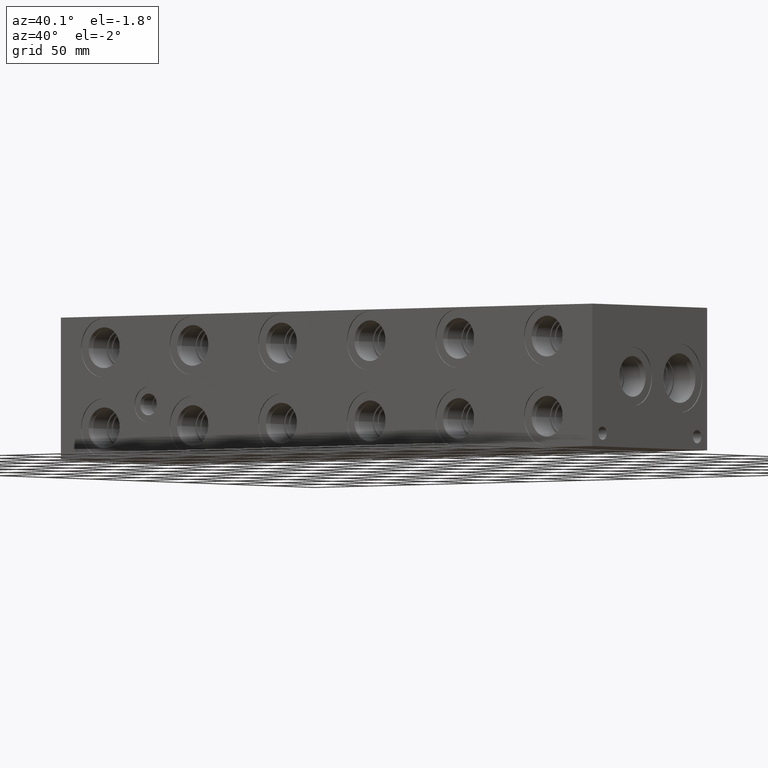
[diagram: clean part render]
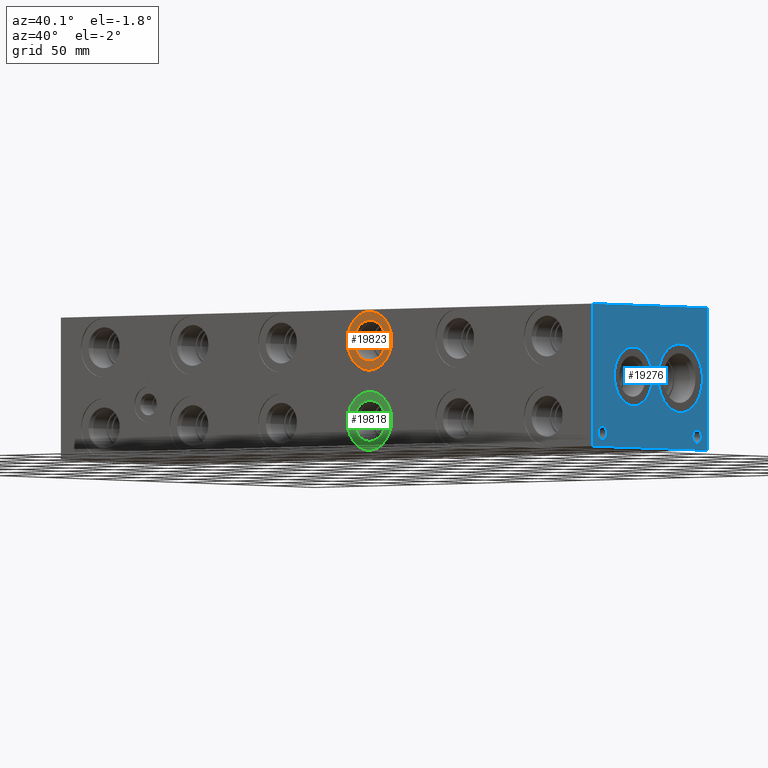
[diagram: same view with three faces highlighted in distinct colors, each labeled with its STEP entity id]
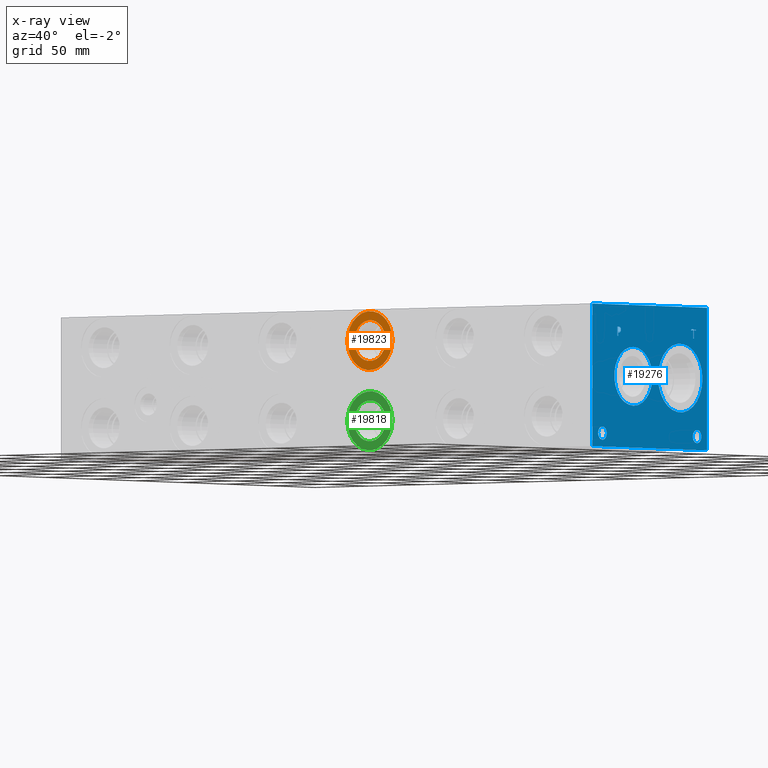
[diagram: x-ray of the same camera — body ghosted, the three highlighted faces saturated]
A machine part, auxiliary view with three faces highlighted in distinct colors.
The next image is the same camera in x-ray (body ghosted, the three faces saturated) — at least one of them is partly hidden behind the body in this view.
Their STEP definitions:

[orange] entity #19823 — the highlighted planar face has unit normal (0, 1, 0).
#671=CIRCLE('',#20759,21.0185);
#672=CIRCLE('',#20760,21.0185);
#673=CIRCLE('',#20762,14.5923);
#674=CIRCLE('',#20763,14.5923);
#1790=FACE_BOUND('',#3771,.T.);
#2620=FACE_OUTER_BOUND('',#3770,.T.);
#3770=EDGE_LOOP('',(#16264,#16265));
#3771=EDGE_LOOP('',(#16266,#16267));
#8906=VERTEX_POINT('',#33477);
#8907=VERTEX_POINT('',#33479);
#8908=VERTEX_POINT('',#33483);
#8909=VERTEX_POINT('',#33484);
#11514=EDGE_CURVE('',#8906,#8907,#671,.T.);
#11515=EDGE_CURVE('',#8907,#8906,#672,.T.);
#11516=EDGE_CURVE('',#8908,#8909,#673,.T.);
#11517=EDGE_CURVE('',#8909,#8908,#674,.T.);
#16264=ORIENTED_EDGE('',*,*,#11515,.F.);
#16265=ORIENTED_EDGE('',*,*,#11514,.F.);
#16266=ORIENTED_EDGE('',*,*,#11516,.T.);
#16267=ORIENTED_EDGE('',*,*,#11517,.T.);
#18379=PLANE('',#20761);
#19823=ADVANCED_FACE('',(#2620,#1790),#18379,.F.);
#20759=AXIS2_PLACEMENT_3D('',#33480,#24211,#24212);
#20760=AXIS2_PLACEMENT_3D('',#33481,#24213,#24214);
#20761=AXIS2_PLACEMENT_3D('',#33482,#24215,#24216);
#20762=AXIS2_PLACEMENT_3D('',#33485,#24217,#24218);
#20763=AXIS2_PLACEMENT_3D('',#33486,#24219,#24220);
#24211=DIRECTION('center_axis',(0.,1.,0.));
#24212=DIRECTION('ref_axis',(1.,0.,0.));
#24213=DIRECTION('center_axis',(0.,1.,0.));
#24214=DIRECTION('ref_axis',(1.,0.,0.));
#24215=DIRECTION('center_axis',(0.,1.,0.));
#24216=DIRECTION('ref_axis',(0.,0.,1.));
#24217=DIRECTION('center_axis',(0.,1.,0.));
#24218=DIRECTION('ref_axis',(1.,0.,0.));
#24219=DIRECTION('center_axis',(0.,1.,0.));
#24220=DIRECTION('ref_axis',(1.,0.,0.));
#33477=CARTESIAN_POINT('',(266.3063,0.7874,79.375));
#33479=CARTESIAN_POINT('',(308.3433,0.7874,79.375));
#33480=CARTESIAN_POINT('Origin',(287.3248,0.7874,79.375));
#33481=CARTESIAN_POINT('Origin',(287.3248,0.7874,79.375));
#33482=CARTESIAN_POINT('Origin',(301.9171,0.7874,79.375));
#33483=CARTESIAN_POINT('',(301.9171,0.7874,79.375));
#33484=CARTESIAN_POINT('',(272.7325,0.787399999999995,79.375));
#33485=CARTESIAN_POINT('Origin',(287.3248,0.7874,79.375));
#33486=CARTESIAN_POINT('Origin',(287.3248,0.7874,79.375));

[blue] entity #19276 — the highlighted planar face has unit normal (1, 0, 0).
#584=CIRCLE('',#20307,24.5618);
#585=CIRCLE('',#20308,24.5618);
#586=CIRCLE('',#20309,21.0185);
#587=CIRCLE('',#20310,21.0185);
#588=CIRCLE('',#20311,4.7625);
#589=CIRCLE('',#20312,4.7625);
#590=CIRCLE('',#20313,4.7625);
#591=CIRCLE('',#20314,4.7625);
#1446=B_SPLINE_CURVE_WITH_KNOTS('',2,(#29009,#29010,#29011,#29012),
 .UNSPECIFIED.,.F.,.F.,(3,1,3),(0.,1.,2.),.UNSPECIFIED.);
#1448=B_SPLINE_CURVE_WITH_KNOTS('',2,(#29030,#29031,#29032,#29033),
 .UNSPECIFIED.,.F.,.F.,(3,1,3),(0.,1.,2.),.UNSPECIFIED.);
#1450=B_SPLINE_CURVE_WITH_KNOTS('',2,(#29079,#29080,#29081,#29082),
 .UNSPECIFIED.,.F.,.F.,(3,1,3),(0.,1.,2.),.UNSPECIFIED.);
#1452=B_SPLINE_CURVE_WITH_KNOTS('',2,(#29097,#29098,#29099,#29100),
 .UNSPECIFIED.,.F.,.F.,(3,1,3),(0.,1.,2.),.UNSPECIFIED.);
#1755=FACE_BOUND('',#3189,.T.);
#1756=FACE_BOUND('',#3190,.T.);
#1757=FACE_BOUND('',#3191,.T.);
#1758=FACE_BOUND('',#3192,.T.);
#1759=FACE_BOUND('',#3193,.T.);
#1760=FACE_BOUND('',#3194,.T.);
#2073=FACE_OUTER_BOUND('',#3188,.T.);
#3188=EDGE_LOOP('',(#13601,#13602,#13603,#13604));
#3189=EDGE_LOOP('',(#13605,#13606));
#3190=EDGE_LOOP('',(#13607,#13608));
#3191=EDGE_LOOP('',(#13609,#13610));
#3192=EDGE_LOOP('',(#13611,#13612));
#3193=EDGE_LOOP('',(#13613,#13614,#13615,#13616,#13617,#13618,#13619,#13620));
#3194=EDGE_LOOP('',(#13621,#13622,#13623,#13624,#13625,#13626,#13627,#13628,
#13629));
#4240=LINE('',#26279,#5912);
#4754=LINE('',#29042,#6426);
#4757=LINE('',#29048,#6429);
#4760=LINE('',#29054,#6432);
#4763=LINE('',#29060,#6435);
#4766=LINE('',#29066,#6438);
#4770=LINE('',#29108,#6442);
#4771=LINE('',#29110,#6443);
#4772=LINE('',#29111,#6444);
#4773=LINE('',#29130,#6445);
#4774=LINE('',#29132,#6446);
#4775=LINE('',#29134,#6447);
#4776=LINE('',#29136,#6448);
#4777=LINE('',#29138,#6449);
#4778=LINE('',#29140,#6450);
#4779=LINE('',#29142,#6451);
#4780=LINE('',#29143,#6452);
#5912=VECTOR('',#21684,10.);
#6426=VECTOR('',#22440,10.);
#6429=VECTOR('',#22445,10.);
#6432=VECTOR('',#22450,10.);
#6435=VECTOR('',#22455,10.);
#6438=VECTOR('',#22460,10.);
#6442=VECTOR('',#22468,10.);
#6443=VECTOR('',#22469,10.);
#6444=VECTOR('',#22470,10.);
#6445=VECTOR('',#22487,10.);
#6446=VECTOR('',#22488,10.);
#6447=VECTOR('',#22489,10.);
#6448=VECTOR('',#22490,10.);
#6449=VECTOR('',#22491,10.);
#6450=VECTOR('',#22492,10.);
#6451=VECTOR('',#22493,10.);
#6452=VECTOR('',#22494,10.);
#7573=VERTEX_POINT('',#26276);
#7574=VERTEX_POINT('',#26278);
#8216=VERTEX_POINT('',#29007);
#8217=VERTEX_POINT('',#29008);
#8220=VERTEX_POINT('',#29029);
#8222=VERTEX_POINT('',#29041);
#8224=VERTEX_POINT('',#29047);
#8226=VERTEX_POINT('',#29053);
#8228=VERTEX_POINT('',#29059);
#8230=VERTEX_POINT('',#29065);
#8232=VERTEX_POINT('',#29078);
#8234=VERTEX_POINT('',#29107);
#8235=VERTEX_POINT('',#29109);
#8236=VERTEX_POINT('',#29112);
#8237=VERTEX_POINT('',#29113);
#8238=VERTEX_POINT('',#29116);
#8239=VERTEX_POINT('',#29117);
#8240=VERTEX_POINT('',#29120);
#8241=VERTEX_POINT('',#29121);
#8242=VERTEX_POINT('',#29124);
#8243=VERTEX_POINT('',#29125);
#8244=VERTEX_POINT('',#29128);
#8245=VERTEX_POINT('',#29129);
#8246=VERTEX_POINT('',#29131);
#8247=VERTEX_POINT('',#29133);
#8248=VERTEX_POINT('',#29135);
#8249=VERTEX_POINT('',#29137);
#8250=VERTEX_POINT('',#29139);
#8251=VERTEX_POINT('',#29141);
#9542=EDGE_CURVE('',#7573,#7574,#4240,.T.);
#10321=EDGE_CURVE('',#8216,#8217,#1446,.T.);
#10325=EDGE_CURVE('',#8220,#8216,#1448,.T.);
#10328=EDGE_CURVE('',#8222,#8220,#4754,.T.);
#10331=EDGE_CURVE('',#8224,#8222,#4757,.T.);
#10334=EDGE_CURVE('',#8226,#8224,#4760,.T.);
#10337=EDGE_CURVE('',#8228,#8226,#4763,.T.);
#10340=EDGE_CURVE('',#8230,#8228,#4766,.T.);
#10343=EDGE_CURVE('',#8232,#8230,#1450,.T.);
#10346=EDGE_CURVE('',#8217,#8232,#1452,.T.);
#10348=EDGE_CURVE('',#7573,#8234,#4770,.T.);
#10349=EDGE_CURVE('',#8234,#8235,#4771,.T.);
#10350=EDGE_CURVE('',#7574,#8235,#4772,.T.);
#10351=EDGE_CURVE('',#8236,#8237,#584,.T.);
#10352=EDGE_CURVE('',#8237,#8236,#585,.T.);
#10353=EDGE_CURVE('',#8238,#8239,#586,.T.);
#10354=EDGE_CURVE('',#8239,#8238,#587,.T.);
#10355=EDGE_CURVE('',#8240,#8241,#588,.T.);
#10356=EDGE_CURVE('',#8241,#8240,#589,.T.);
#10357=EDGE_CURVE('',#8242,#8243,#590,.T.);
#10358=EDGE_CURVE('',#8243,#8242,#591,.T.);
#10359=EDGE_CURVE('',#8244,#8245,#4773,.T.);
#10360=EDGE_CURVE('',#8245,#8246,#4774,.T.);
#10361=EDGE_CURVE('',#8246,#8247,#4775,.T.);
#10362=EDGE_CURVE('',#8247,#8248,#4776,.T.);
#10363=EDGE_CURVE('',#8248,#8249,#4777,.T.);
#10364=EDGE_CURVE('',#8249,#8250,#4778,.T.);
#10365=EDGE_CURVE('',#8250,#8251,#4779,.T.);
#10366=EDGE_CURVE('',#8251,#8244,#4780,.T.);
#13601=ORIENTED_EDGE('',*,*,#10348,.T.);
#13602=ORIENTED_EDGE('',*,*,#10349,.T.);
#13603=ORIENTED_EDGE('',*,*,#10350,.F.);
#13604=ORIENTED_EDGE('',*,*,#9542,.F.);
#13605=ORIENTED_EDGE('',*,*,#10351,.T.);
#13606=ORIENTED_EDGE('',*,*,#10352,.T.);
#13607=ORIENTED_EDGE('',*,*,#10353,.T.);
#13608=ORIENTED_EDGE('',*,*,#10354,.T.);
#13609=ORIENTED_EDGE('',*,*,#10355,.T.);
#13610=ORIENTED_EDGE('',*,*,#10356,.T.);
#13611=ORIENTED_EDGE('',*,*,#10357,.T.);
#13612=ORIENTED_EDGE('',*,*,#10358,.T.);
#13613=ORIENTED_EDGE('',*,*,#10359,.T.);
#13614=ORIENTED_EDGE('',*,*,#10360,.T.);
#13615=ORIENTED_EDGE('',*,*,#10361,.T.);
#13616=ORIENTED_EDGE('',*,*,#10362,.T.);
#13617=ORIENTED_EDGE('',*,*,#10363,.T.);
#13618=ORIENTED_EDGE('',*,*,#10364,.T.);
#13619=ORIENTED_EDGE('',*,*,#10365,.T.);
#13620=ORIENTED_EDGE('',*,*,#10366,.T.);
#13621=ORIENTED_EDGE('',*,*,#10321,.T.);
#13622=ORIENTED_EDGE('',*,*,#10346,.T.);
#13623=ORIENTED_EDGE('',*,*,#10343,.T.);
#13624=ORIENTED_EDGE('',*,*,#10340,.T.);
#13625=ORIENTED_EDGE('',*,*,#10337,.T.);
#13626=ORIENTED_EDGE('',*,*,#10334,.T.);
#13627=ORIENTED_EDGE('',*,*,#10331,.T.);
#13628=ORIENTED_EDGE('',*,*,#10328,.T.);
#13629=ORIENTED_EDGE('',*,*,#10325,.T.);
#18045=PLANE('',#20306);
#19276=ADVANCED_FACE('',(#2073,#1755,#1756,#1757,#1758,#1759,#1760),#18045,
 .T.);
#20306=AXIS2_PLACEMENT_3D('',#29106,#22466,#22467);
#20307=AXIS2_PLACEMENT_3D('',#29114,#22471,#22472);
#20308=AXIS2_PLACEMENT_3D('',#29115,#22473,#22474);
#20309=AXIS2_PLACEMENT_3D('',#29118,#22475,#22476);
#20310=AXIS2_PLACEMENT_3D('',#29119,#22477,#22478);
#20311=AXIS2_PLACEMENT_3D('',#29122,#22479,#22480);
#20312=AXIS2_PLACEMENT_3D('',#29123,#22481,#22482);
#20313=AXIS2_PLACEMENT_3D('',#29126,#22483,#22484);
#20314=AXIS2_PLACEMENT_3D('',#29127,#22485,#22486);
#21684=DIRECTION('',(0.,0.,1.));
#22440=DIRECTION('',(0.,1.,0.));
#22445=DIRECTION('',(0.,0.,1.));
#22450=DIRECTION('',(0.,-1.,0.));
#22455=DIRECTION('',(0.,0.,-1.));
#22460=DIRECTION('',(0.,-1.,0.));
#22466=DIRECTION('center_axis',(1.,0.,0.));
#22467=DIRECTION('ref_axis',(0.,1.,0.));
#22468=DIRECTION('',(0.,1.,0.));
#22469=DIRECTION('',(0.,0.,1.));
#22470=DIRECTION('',(0.,1.,0.));
#22471=DIRECTION('center_axis',(-1.,0.,0.));
#22472=DIRECTION('ref_axis',(0.,1.,0.));
#22473=DIRECTION('center_axis',(-1.,0.,0.));
#22474=DIRECTION('ref_axis',(0.,1.,0.));
#22475=DIRECTION('center_axis',(-1.,0.,0.));
#22476=DIRECTION('ref_axis',(0.,0.,-1.));
#22477=DIRECTION('center_axis',(-1.,0.,0.));
#22478=DIRECTION('ref_axis',(0.,0.,-1.));
#22479=DIRECTION('center_axis',(-1.,0.,0.));
#22480=DIRECTION('ref_axis',(0.,1.,0.));
#22481=DIRECTION('center_axis',(-1.,0.,0.));
#22482=DIRECTION('ref_axis',(0.,1.,0.));
#22483=DIRECTION('center_axis',(-1.,0.,0.));
#22484=DIRECTION('ref_axis',(0.,1.,0.));
#22485=DIRECTION('center_axis',(-1.,0.,0.));
#22486=DIRECTION('ref_axis',(0.,1.,0.));
#22487=DIRECTION('',(0.,-1.,0.));
#22488=DIRECTION('',(0.,0.,1.));
#22489=DIRECTION('',(0.,-1.,0.));
#22490=DIRECTION('',(0.,0.,1.));
#22491=DIRECTION('',(0.,1.,0.));
#22492=DIRECTION('',(0.,0.,-1.));
#22493=DIRECTION('',(0.,-1.,0.));
#22494=DIRECTION('',(0.,0.,-1.));
#26276=CARTESIAN_POINT('',(495.3,0.,0.));
#26278=CARTESIAN_POINT('',(495.3,0.,101.6));
#26279=CARTESIAN_POINT('',(495.3,0.,0.));
#29007=CARTESIAN_POINT('',(495.3,30.8880672023594,85.3287681439707));
#29008=CARTESIAN_POINT('',(495.3,31.644509654532,83.810737372604));
#29009=CARTESIAN_POINT('Ctrl Pts',(495.3,30.8880672023594,85.3287681439707));
#29010=CARTESIAN_POINT('Ctrl Pts',(495.3,31.2431320268486,85.0869123939564));
#29011=CARTESIAN_POINT('Ctrl Pts',(495.3,31.644509654532,84.3407616758269));
#29012=CARTESIAN_POINT('Ctrl Pts',(495.3,31.644509654532,83.810737372604));
#29029=CARTESIAN_POINT('',(495.3,29.2259521543883,85.7249999046326));
#29030=CARTESIAN_POINT('Ctrl Pts',(495.3,29.2259521543883,85.7249999046326));
#29031=CARTESIAN_POINT('Ctrl Pts',(495.3,29.7919975267624,85.7249999046326));
#29032=CARTESIAN_POINT('Ctrl Pts',(495.3,30.584461048086,85.5397486918556));
#29033=CARTESIAN_POINT('Ctrl Pts',(495.3,30.8880672023594,85.3287681439707));
#29041=CARTESIAN_POINT('',(495.3,27.6307333776978,85.7249999046326));
#29042=CARTESIAN_POINT('',(495.3,13.8153666888489,85.7249999046326));
#29047=CARTESIAN_POINT('',(495.3,27.6307333776978,79.375));
#29048=CARTESIAN_POINT('',(495.3,27.6307333776978,39.6875));
#29053=CARTESIAN_POINT('',(495.3,28.4746555692373,79.375));
#29054=CARTESIAN_POINT('',(495.3,14.2373277846186,79.375));
#29059=CARTESIAN_POINT('',(495.3,28.4746555692373,81.7420988299279));
#29060=CARTESIAN_POINT('',(495.3,28.4746555692373,40.8710494149639));
#29065=CARTESIAN_POINT('',(495.3,29.1899310852372,81.7420988299279));
#29066=CARTESIAN_POINT('',(495.3,14.5949655426186,81.7420988299279));
#29078=CARTESIAN_POINT('',(495.3,31.0887560162011,82.4007698086904));
#29079=CARTESIAN_POINT('Ctrl Pts',(495.3,31.0887560162011,82.4007698086904));
#29080=CARTESIAN_POINT('Ctrl Pts',(495.3,30.7594205268198,82.0765801863307));
#29081=CARTESIAN_POINT('Ctrl Pts',(495.3,29.8691855320861,81.7420988299279));
#29082=CARTESIAN_POINT('Ctrl Pts',(495.3,29.1899310852372,81.7420988299279));
#29097=CARTESIAN_POINT('Ctrl Pts',(495.3,31.644509654532,83.810737372604));
#29098=CARTESIAN_POINT('Ctrl Pts',(495.3,31.644509654532,83.3990680108774));
#29099=CARTESIAN_POINT('Ctrl Pts',(495.3,31.3511952343018,82.6580631597695));
#29100=CARTESIAN_POINT('Ctrl Pts',(495.3,31.0887560162011,82.4007698086904));
#29106=CARTESIAN_POINT('Origin',(495.3,0.,0.));
#29107=CARTESIAN_POINT('',(495.3,127.,0.));
#29108=CARTESIAN_POINT('',(495.3,0.,0.));
#29109=CARTESIAN_POINT('',(495.3,127.,101.6));
#29110=CARTESIAN_POINT('',(495.3,127.,0.));
#29111=CARTESIAN_POINT('',(495.3,0.,101.6));
#29112=CARTESIAN_POINT('',(495.3,121.8184,50.8));
#29113=CARTESIAN_POINT('',(495.3,72.6948,50.8));
#29114=CARTESIAN_POINT('Origin',(495.3,97.2566,50.8));
#29115=CARTESIAN_POINT('Origin',(495.3,97.2566,50.8));
#29116=CARTESIAN_POINT('',(495.3,45.2882,29.7815));
#29117=CARTESIAN_POINT('',(495.3,45.2882,71.8185));
#29118=CARTESIAN_POINT('Origin',(495.3,45.2882,50.8));
#29119=CARTESIAN_POINT('Origin',(495.3,45.2882,50.8));
#29120=CARTESIAN_POINT('',(495.3,120.6373,9.525));
#29121=CARTESIAN_POINT('',(495.3,111.1123,9.525));
#29122=CARTESIAN_POINT('Origin',(495.3,115.8748,9.525));
#29123=CARTESIAN_POINT('Origin',(495.3,115.8748,9.525));
#29124=CARTESIAN_POINT('',(495.3,15.8877,9.525));
#29125=CARTESIAN_POINT('',(495.3,6.3627,9.525));
#29126=CARTESIAN_POINT('Origin',(495.3,11.1252,9.525));
#29127=CARTESIAN_POINT('Origin',(495.3,11.1252,9.525));
#29128=CARTESIAN_POINT('',(495.3,112.417765271453,79.502));
#29129=CARTESIAN_POINT('',(495.3,111.573843079914,79.502));
#29130=CARTESIAN_POINT('',(495.3,56.2088826357265,79.502));
#29131=CARTESIAN_POINT('',(495.3,111.573843079914,85.1007033194816));
#29132=CARTESIAN_POINT('',(495.3,111.573843079914,39.751));
#29133=CARTESIAN_POINT('',(495.3,109.443454132978,85.1007033194816));
#29134=CARTESIAN_POINT('',(495.3,55.7869215399568,85.1007033194816));
#29135=CARTESIAN_POINT('',(495.3,109.443454132978,85.8519999046325));
#29136=CARTESIAN_POINT('',(495.3,109.443454132978,42.5503516597408));
#29137=CARTESIAN_POINT('',(495.3,114.548154218388,85.8519999046325));
#29138=CARTESIAN_POINT('',(495.3,54.7217270664892,85.8519999046325));
#29139=CARTESIAN_POINT('',(495.3,114.548154218388,85.1007033194816));
#29140=CARTESIAN_POINT('',(495.3,114.548154218388,42.9259999523163));
#29141=CARTESIAN_POINT('',(495.3,112.417765271453,85.1007033194816));
#29142=CARTESIAN_POINT('',(495.3,57.274077109194,85.1007033194816));
#29143=CARTESIAN_POINT('',(495.3,112.417765271453,42.5503516597408));

[green] entity #19818 — the highlighted planar face has unit normal (0, 1, 0).
#662=CIRCLE('',#20745,21.0185);
#663=CIRCLE('',#20746,21.0185);
#664=CIRCLE('',#20748,14.5923);
#665=CIRCLE('',#20749,14.5923);
#1789=FACE_BOUND('',#3765,.T.);
#2615=FACE_OUTER_BOUND('',#3764,.T.);
#3764=EDGE_LOOP('',(#16237,#16238));
#3765=EDGE_LOOP('',(#16239,#16240));
#8897=VERTEX_POINT('',#33450);
#8898=VERTEX_POINT('',#33452);
#8899=VERTEX_POINT('',#33456);
#8900=VERTEX_POINT('',#33457);
#11501=EDGE_CURVE('',#8897,#8898,#662,.T.);
#11502=EDGE_CURVE('',#8898,#8897,#663,.T.);
#11503=EDGE_CURVE('',#8899,#8900,#664,.T.);
#11504=EDGE_CURVE('',#8900,#8899,#665,.T.);
#16237=ORIENTED_EDGE('',*,*,#11502,.F.);
#16238=ORIENTED_EDGE('',*,*,#11501,.F.);
#16239=ORIENTED_EDGE('',*,*,#11503,.T.);
#16240=ORIENTED_EDGE('',*,*,#11504,.T.);
#18378=PLANE('',#20747);
#19818=ADVANCED_FACE('',(#2615,#1789),#18378,.F.);
#20745=AXIS2_PLACEMENT_3D('',#33453,#24179,#24180);
#20746=AXIS2_PLACEMENT_3D('',#33454,#24181,#24182);
#20747=AXIS2_PLACEMENT_3D('',#33455,#24183,#24184);
#20748=AXIS2_PLACEMENT_3D('',#33458,#24185,#24186);
#20749=AXIS2_PLACEMENT_3D('',#33459,#24187,#24188);
#24179=DIRECTION('center_axis',(0.,1.,0.));
#24180=DIRECTION('ref_axis',(1.,0.,0.));
#24181=DIRECTION('center_axis',(0.,1.,0.));
#24182=DIRECTION('ref_axis',(1.,0.,0.));
#24183=DIRECTION('center_axis',(0.,1.,0.));
#24184=DIRECTION('ref_axis',(0.,0.,1.));
#24185=DIRECTION('center_axis',(0.,1.,0.));
#24186=DIRECTION('ref_axis',(1.,0.,0.));
#24187=DIRECTION('center_axis',(0.,1.,0.));
#24188=DIRECTION('ref_axis',(1.,0.,0.));
#33450=CARTESIAN_POINT('',(266.3063,0.7874,22.225));
#33452=CARTESIAN_POINT('',(308.3433,0.7874,22.225));
#33453=CARTESIAN_POINT('Origin',(287.3248,0.7874,22.225));
#33454=CARTESIAN_POINT('Origin',(287.3248,0.7874,22.225));
#33455=CARTESIAN_POINT('Origin',(301.9171,0.7874,22.225));
#33456=CARTESIAN_POINT('',(301.9171,0.7874,22.225));
#33457=CARTESIAN_POINT('',(272.7325,0.787399999999995,22.225));
#33458=CARTESIAN_POINT('Origin',(287.3248,0.7874,22.225));
#33459=CARTESIAN_POINT('Origin',(287.3248,0.7874,22.225));